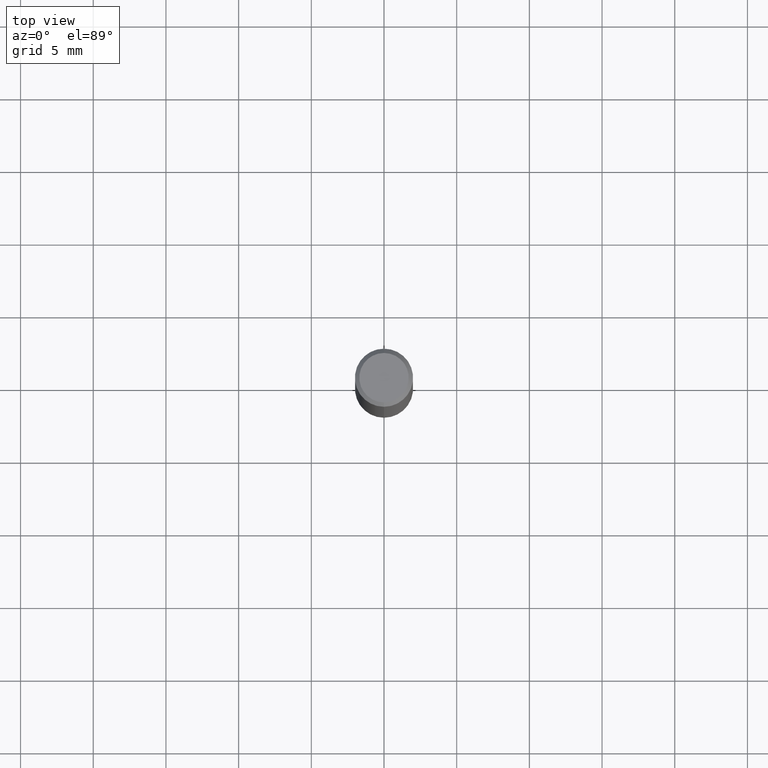
[diagram: clean part render]
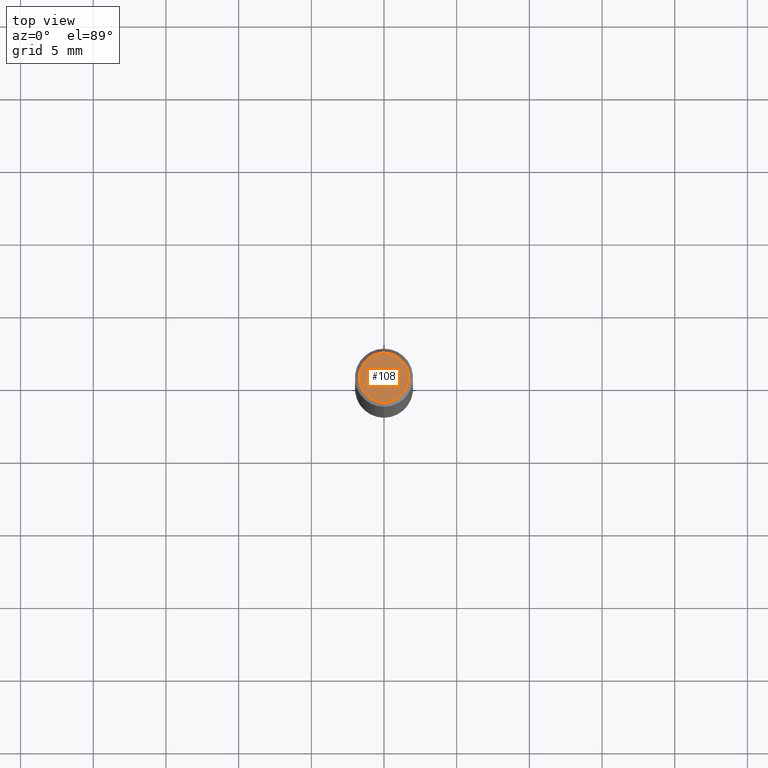
[diagram: same view with one face highlighted and labeled with its STEP entity id]
A machine part, top view. The second image highlights one B-rep face of the part: STEP entity #108.
In plain terms, the highlighted planar face has unit normal (-0, 0, 1).
Its self-contained STEP definition (entity closure, byte-faithful):
#86=EDGE_CURVE('',#156,#134,#211,.T.);
#108=ADVANCED_FACE('',(#234),#235,.T.);
#132=EDGE_CURVE('',#134,#156,#264,.T.);
#134=VERTEX_POINT('',#266);
#156=VERTEX_POINT('',#288);
#211=CIRCLE('',#344,1.7);
#234=FACE_OUTER_BOUND('',#375,.T.);
#235=PLANE('',#376);
#264=CIRCLE('',#409,1.7);
#266=CARTESIAN_POINT('',(2.08183080149804E-016,-1.7,0.0));
#288=CARTESIAN_POINT('',(0.0,1.7,0.0));
#344=AXIS2_PLACEMENT_3D('',#493,#494,#495);
#375=EDGE_LOOP('',(#519,#520));
#376=AXIS2_PLACEMENT_3D('',#521,#522,#523);
#409=AXIS2_PLACEMENT_3D('',#571,#572,#573);
#493=CARTESIAN_POINT('',(0.0,0.0,0.0));
#494=DIRECTION('',(0.0,0.0,-1.0));
#495=DIRECTION('',(0.0,1.0,0.0));
#519=ORIENTED_EDGE('',*,*,#86,.F.);
#520=ORIENTED_EDGE('',*,*,#132,.F.);
#521=CARTESIAN_POINT('',(0.0,0.85,0.0));
#522=DIRECTION('',(-0.0,0.0,1.0));
#523=DIRECTION('',(0.0,-1.0,0.0));
#571=CARTESIAN_POINT('',(0.0,0.0,0.0));
#572=DIRECTION('',(0.0,0.0,-1.0));
#573=DIRECTION('',(0.0,1.0,0.0));